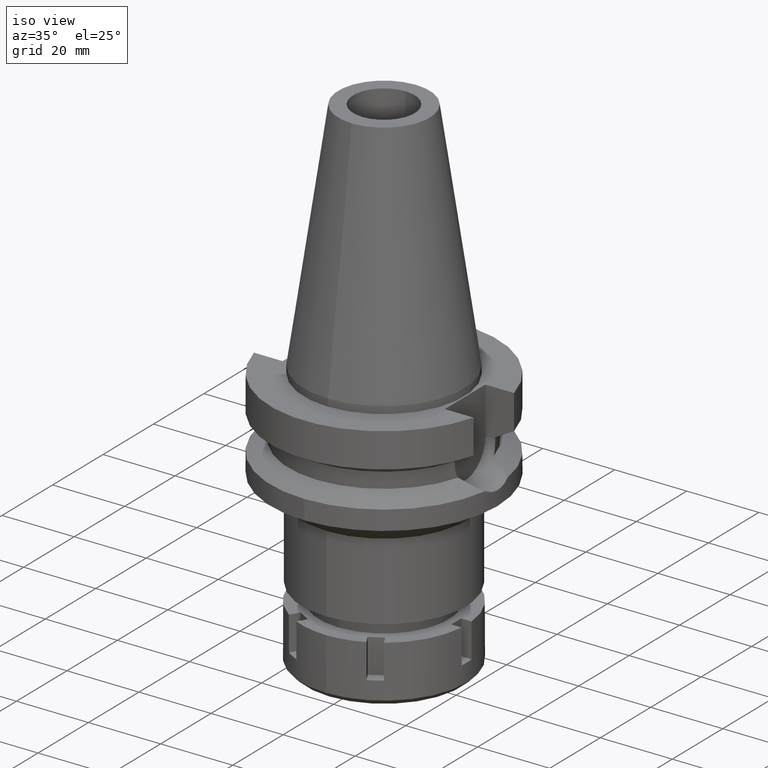
[diagram: clean part render]
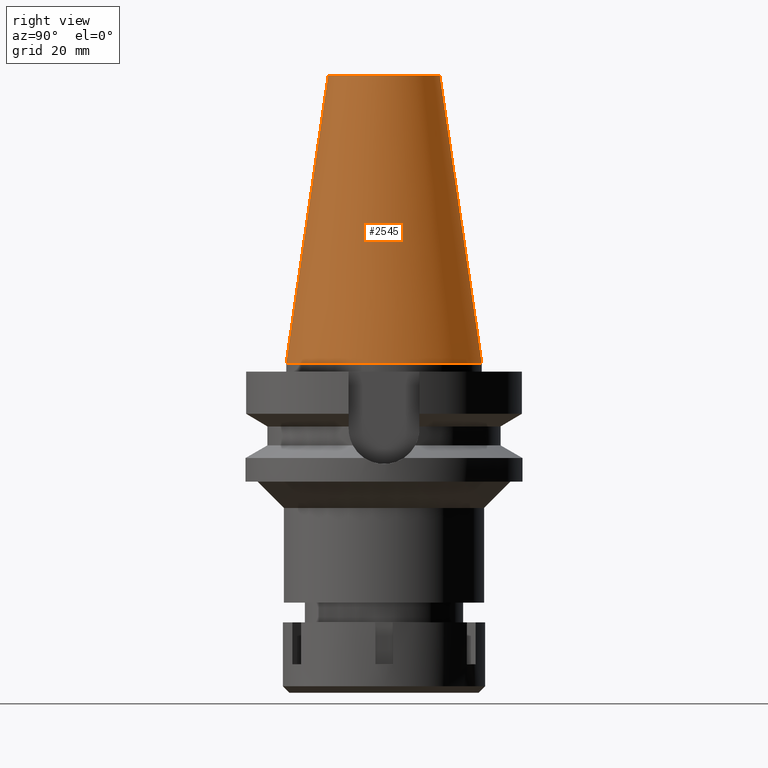
[diagram: tour spotlight — one face highlighted and labeled with its STEP entity id]
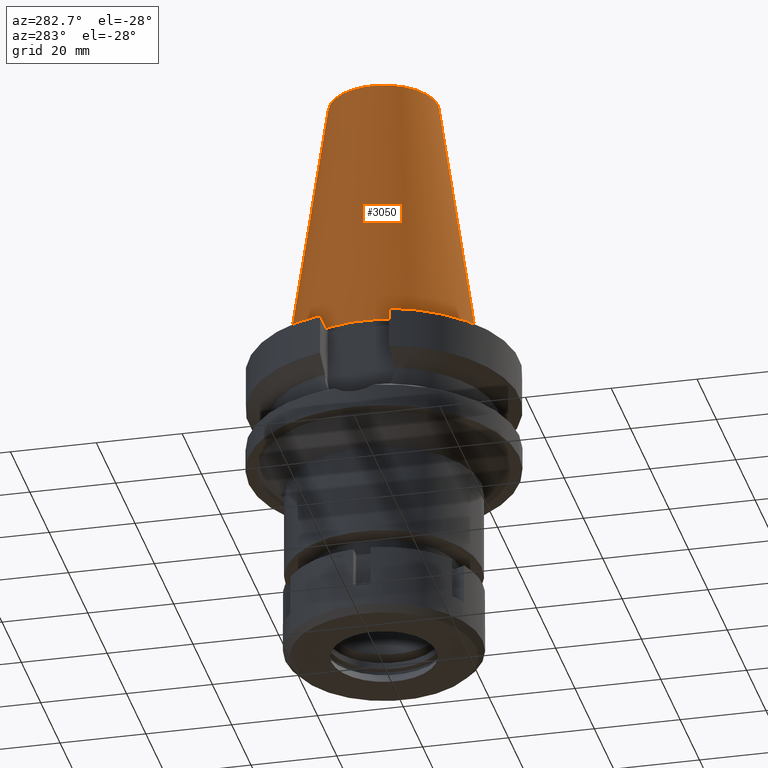
[diagram: tour spotlight — one face highlighted and labeled with its STEP entity id]
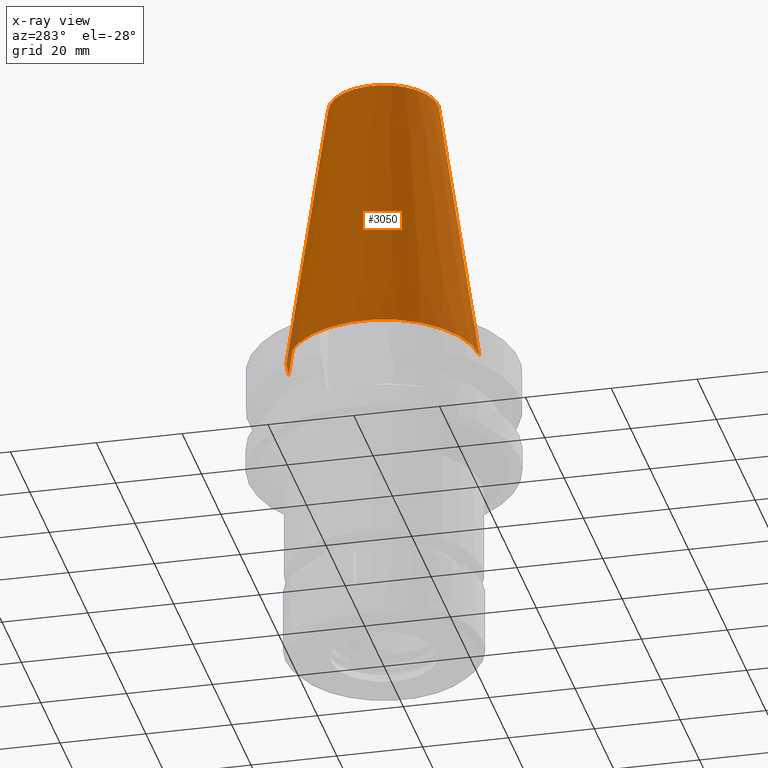
[diagram: x-ray of the same camera — body ghosted, this tour face saturated]
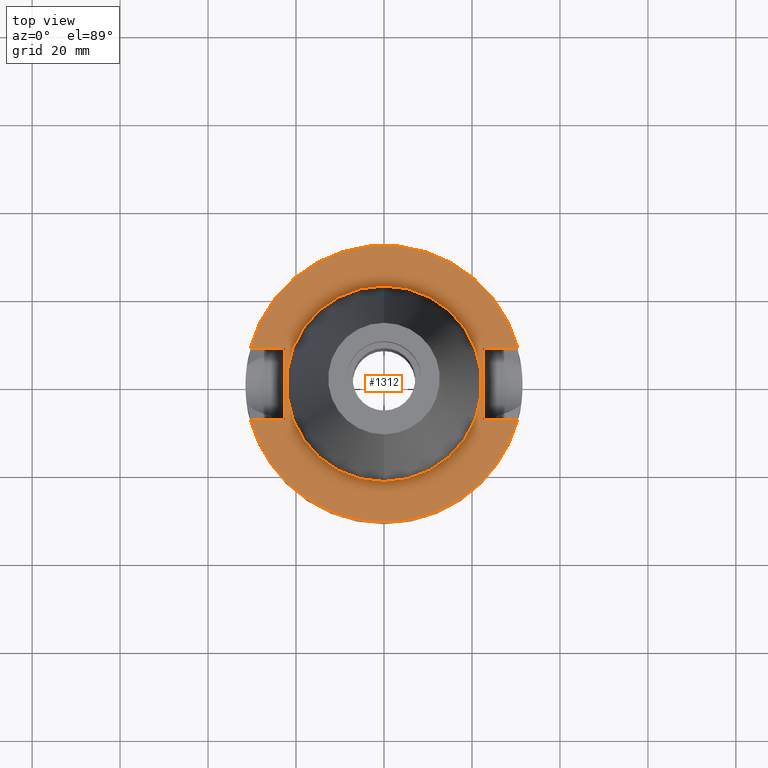
[diagram: tour spotlight — one face highlighted and labeled with its STEP entity id]
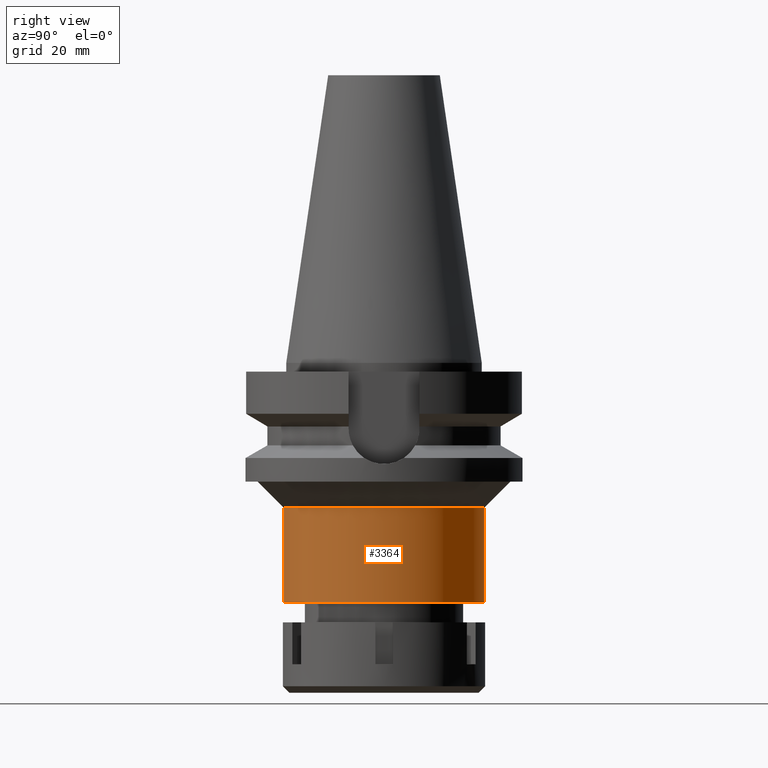
[diagram: tour spotlight — one face highlighted and labeled with its STEP entity id]
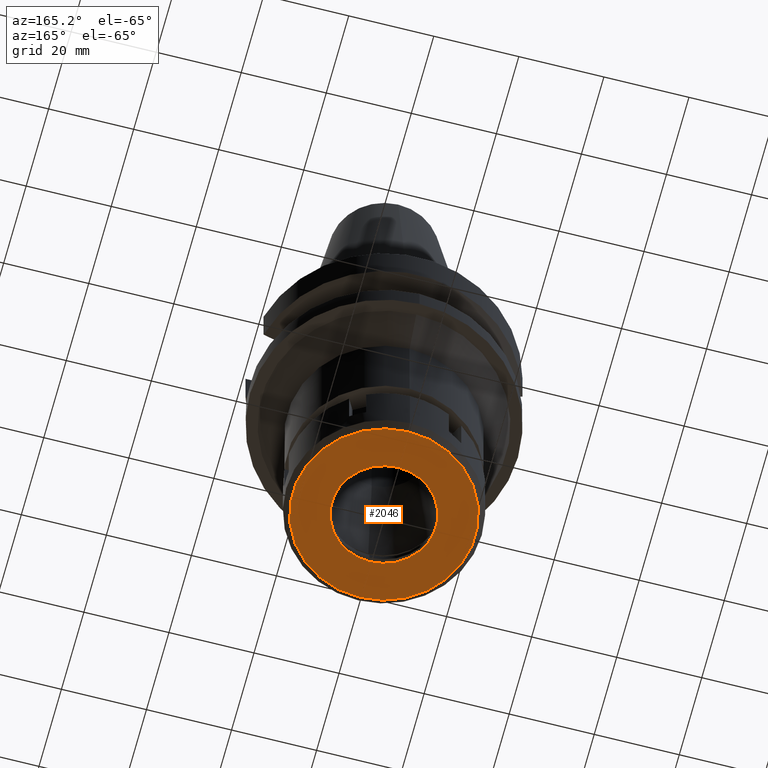
[diagram: tour spotlight — one face highlighted and labeled with its STEP entity id]
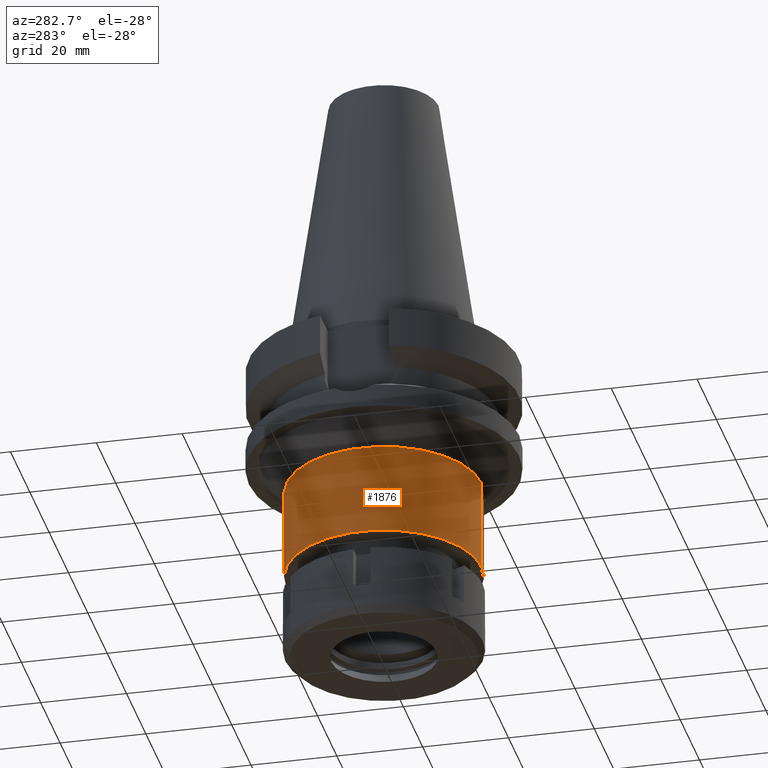
[diagram: tour spotlight — one face highlighted and labeled with its STEP entity id]
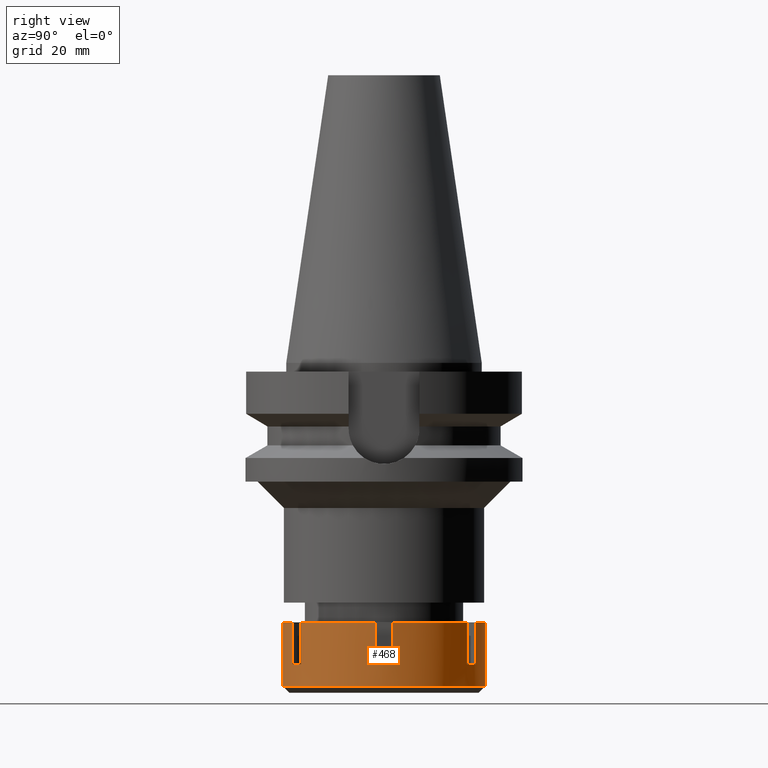
[diagram: tour spotlight — one face highlighted and labeled with its STEP entity id]
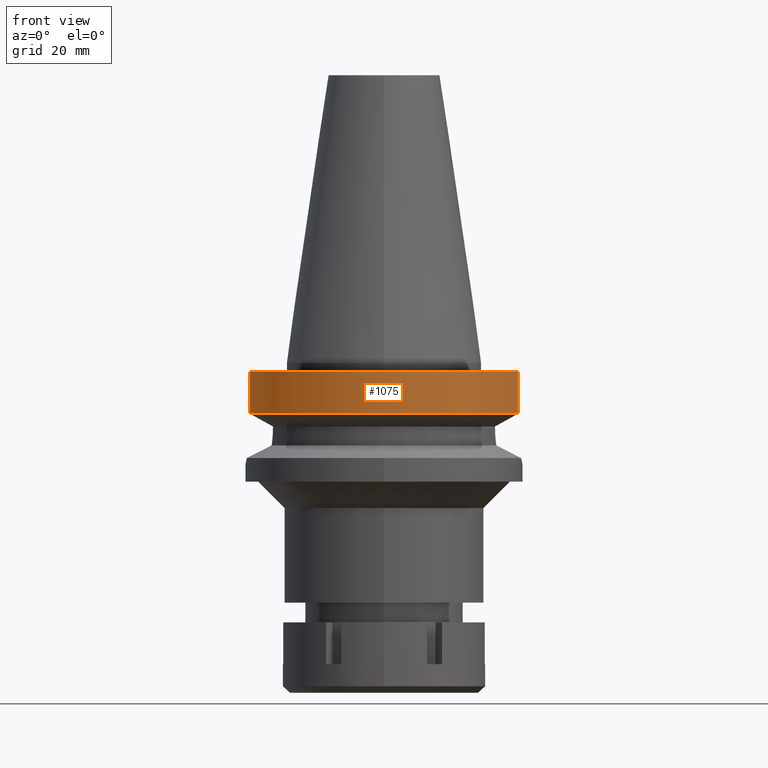
[diagram: tour spotlight — one face highlighted and labeled with its STEP entity id]
A machine part: a face-by-face anatomy tour. The part has 90 B-rep faces; the first image is the clean iso view, then the 8 largest visible faces are spotlighted one at a time (largest first), each with its STEP entity span.

Face 1 — right view, entity #2545. In plain terms, the highlighted conical surface has half-angle 8.297 deg.
Definition (entity closure, byte-faithful):
#220 = AXIS2_PLACEMENT_3D ( 'NONE', #850, #3033, #817 ) ;
#231 = CARTESIAN_POINT ( 'NONE',  ( 0.0000000000000000000, -12.68766899429999917, 65.40000000000000568 ) ) ;
#250 = ORIENTED_EDGE ( 'NONE', *, *, #2517, .F. ) ;
#337 = CARTESIAN_POINT ( 'NONE',  ( 0.0000000000000000000, 12.68766899429999917, 65.40000000000000568 ) ) ;
#340 = CIRCLE ( 'NONE', #220, 22.22500000000000142 ) ;
#346 = ORIENTED_EDGE ( 'NONE', *, *, #1096, .F. ) ;
#401 = CONICAL_SURFACE ( 'NONE', #3384, 17.45633449714999941, 0.1448099680379422438 ) ;
#595 = EDGE_CURVE ( 'NONE', #801, #2490, #2067, .T. ) ;
#795 = CARTESIAN_POINT ( 'NONE',  ( 0.0000000000000000000, 1.625106302469000024E-14, 65.40000000000000568 ) ) ;
#801 = VERTEX_POINT ( 'NONE', #2537 ) ;
#817 = DIRECTION ( 'NONE',  ( 0.0000000000000000000, 1.000000000000000000, 0.0000000000000000000 ) ) ;
#821 = DIRECTION ( 'NONE',  ( 0.0000000000000000000, -0.1443043893539925626, -0.9895333461855498891 ) ) ;
#850 = CARTESIAN_POINT ( 'NONE',  ( 0.0000000000000000000, 1.625106302469000024E-14, 2.842170943039999687E-14 ) ) ;
#867 = CARTESIAN_POINT ( 'NONE',  ( 0.0000000000000000000, 22.22500000000000142, 7.105427357600999334E-14 ) ) ;
#1096 = EDGE_CURVE ( 'NONE', #801, #2719, #2988, .T. ) ;
#1100 = ORIENTED_EDGE ( 'NONE', *, *, #1903, .T. ) ;
#1357 = CARTESIAN_POINT ( 'NONE',  ( 0.0000000000000000000, 1.625106302469000024E-14, 32.70000000000000284 ) ) ;
#1366 = VECTOR ( 'NONE', #2788, 1000.000000000000114 ) ;
#1388 = DIRECTION ( 'NONE',  ( 0.0000000000000000000, 1.000000000000000000, 0.0000000000000000000 ) ) ;
#1433 = VERTEX_POINT ( 'NONE', #2119 ) ;
#1582 = ORIENTED_EDGE ( 'NONE', *, *, #595, .T. ) ;
#1659 = FACE_OUTER_BOUND ( 'NONE', #2609, .T. ) ;
#1903 = EDGE_CURVE ( 'NONE', #2490, #1433, #2207, .T. ) ;
#1914 = CARTESIAN_POINT ( 'NONE',  ( 0.0000000000000000000, -12.68766899429999917, 65.40000000000000568 ) ) ;
#1924 = DIRECTION ( 'NONE',  ( 0.0000000000000000000, -1.000000000000000000, 0.0000000000000000000 ) ) ;
#2067 = CIRCLE ( 'NONE', #3452, 12.68766899429999917 ) ;
#2119 = CARTESIAN_POINT ( 'NONE',  ( 0.0000000000000000000, -22.22500000000000142, 7.105427357600999334E-14 ) ) ;
#2207 = LINE ( 'NONE', #1914, #3378 ) ;
#2400 = DIRECTION ( 'NONE',  ( 0.0000000000000000000, 0.0000000000000000000, -1.000000000000000000 ) ) ;
#2490 = VERTEX_POINT ( 'NONE', #231 ) ;
#2517 = EDGE_CURVE ( 'NONE', #2719, #1433, #340, .T. ) ;
#2537 = CARTESIAN_POINT ( 'NONE',  ( 0.0000000000000000000, 12.68766899429999917, 65.40000000000000568 ) ) ;
#2545 = ADVANCED_FACE ( 'NONE', ( #1659 ), #401, .T. ) ;
#2609 = EDGE_LOOP ( 'NONE', ( #1582, #1100, #250, #346 ) ) ;
#2719 = VERTEX_POINT ( 'NONE', #867 ) ;
#2788 = DIRECTION ( 'NONE',  ( 0.0000000000000000000, 0.1443043893539925626, -0.9895333461855498891 ) ) ;
#2973 = DIRECTION ( 'NONE',  ( 0.0000000000000000000, 0.0000000000000000000, -1.000000000000000000 ) ) ;
#2988 = LINE ( 'NONE', #337, #1366 ) ;
#3033 = DIRECTION ( 'NONE',  ( 0.0000000000000000000, 0.0000000000000000000, -1.000000000000000000 ) ) ;
#3378 = VECTOR ( 'NONE', #821, 1000.000000000000114 ) ;
#3384 = AXIS2_PLACEMENT_3D ( 'NONE', #1357, #2400, #1924 ) ;
#3452 = AXIS2_PLACEMENT_3D ( 'NONE', #795, #2973, #1388 ) ;

Face 2 — auxiliary view, entity #3050. An x-ray twin of the same camera follows (body ghosted, this face saturated) — the face is partly hidden behind the body. In plain terms, the highlighted conical surface has half-angle 8.297 deg.
Definition (entity closure, byte-faithful):
#201 = DIRECTION ( 'NONE',  ( 0.0000000000000000000, 0.0000000000000000000, -1.000000000000000000 ) ) ;
#231 = CARTESIAN_POINT ( 'NONE',  ( 0.0000000000000000000, -12.68766899429999917, 65.40000000000000568 ) ) ;
#279 = CONICAL_SURFACE ( 'NONE', #1776, 17.45633449714999941, 0.1448099680379422438 ) ;
#337 = CARTESIAN_POINT ( 'NONE',  ( 0.0000000000000000000, 12.68766899429999917, 65.40000000000000568 ) ) ;
#426 = DIRECTION ( 'NONE',  ( 0.0000000000000000000, -1.000000000000000000, 0.0000000000000000000 ) ) ;
#487 = CARTESIAN_POINT ( 'NONE',  ( 0.0000000000000000000, 1.625106302469000024E-14, 32.70000000000000284 ) ) ;
#514 = AXIS2_PLACEMENT_3D ( 'NONE', #2650, #1573, #729 ) ;
#648 = ORIENTED_EDGE ( 'NONE', *, *, #2318, .T. ) ;
#729 = DIRECTION ( 'NONE',  ( 0.0000000000000000000, -1.000000000000000000, 0.0000000000000000000 ) ) ;
#801 = VERTEX_POINT ( 'NONE', #2537 ) ;
#821 = DIRECTION ( 'NONE',  ( 0.0000000000000000000, -0.1443043893539925626, -0.9895333461855498891 ) ) ;
#867 = CARTESIAN_POINT ( 'NONE',  ( 0.0000000000000000000, 22.22500000000000142, 7.105427357600999334E-14 ) ) ;
#911 = CIRCLE ( 'NONE', #514, 12.68766899429999917 ) ;
#1096 = EDGE_CURVE ( 'NONE', #801, #2719, #2988, .T. ) ;
#1366 = VECTOR ( 'NONE', #2788, 1000.000000000000114 ) ;
#1433 = VERTEX_POINT ( 'NONE', #2119 ) ;
#1573 = DIRECTION ( 'NONE',  ( 0.0000000000000000000, 0.0000000000000000000, -1.000000000000000000 ) ) ;
#1776 = AXIS2_PLACEMENT_3D ( 'NONE', #487, #1867, #2662 ) ;
#1857 = EDGE_CURVE ( 'NONE', #1433, #2719, #2053, .T. ) ;
#1867 = DIRECTION ( 'NONE',  ( 0.0000000000000000000, 0.0000000000000000000, -1.000000000000000000 ) ) ;
#1903 = EDGE_CURVE ( 'NONE', #2490, #1433, #2207, .T. ) ;
#1914 = CARTESIAN_POINT ( 'NONE',  ( 0.0000000000000000000, -12.68766899429999917, 65.40000000000000568 ) ) ;
#1922 = ORIENTED_EDGE ( 'NONE', *, *, #1096, .T. ) ;
#2053 = CIRCLE ( 'NONE', #2390, 22.22500000000000142 ) ;
#2119 = CARTESIAN_POINT ( 'NONE',  ( 0.0000000000000000000, -22.22500000000000142, 7.105427357600999334E-14 ) ) ;
#2134 = ORIENTED_EDGE ( 'NONE', *, *, #1857, .F. ) ;
#2207 = LINE ( 'NONE', #1914, #3378 ) ;
#2318 = EDGE_CURVE ( 'NONE', #2490, #801, #911, .T. ) ;
#2390 = AXIS2_PLACEMENT_3D ( 'NONE', #2909, #201, #426 ) ;
#2413 = ORIENTED_EDGE ( 'NONE', *, *, #1903, .F. ) ;
#2490 = VERTEX_POINT ( 'NONE', #231 ) ;
#2537 = CARTESIAN_POINT ( 'NONE',  ( 0.0000000000000000000, 12.68766899429999917, 65.40000000000000568 ) ) ;
#2650 = CARTESIAN_POINT ( 'NONE',  ( 0.0000000000000000000, 1.625106302469000024E-14, 65.40000000000000568 ) ) ;
#2662 = DIRECTION ( 'NONE',  ( 0.0000000000000000000, -1.000000000000000000, 0.0000000000000000000 ) ) ;
#2719 = VERTEX_POINT ( 'NONE', #867 ) ;
#2788 = DIRECTION ( 'NONE',  ( 0.0000000000000000000, 0.1443043893539925626, -0.9895333461855498891 ) ) ;
#2909 = CARTESIAN_POINT ( 'NONE',  ( 0.0000000000000000000, 1.625106302469000024E-14, 2.842170943039999687E-14 ) ) ;
#2953 = FACE_OUTER_BOUND ( 'NONE', #3304, .T. ) ;
#2988 = LINE ( 'NONE', #337, #1366 ) ;
#3050 = ADVANCED_FACE ( 'NONE', ( #2953 ), #279, .T. ) ;
#3304 = EDGE_LOOP ( 'NONE', ( #2134, #2413, #648, #1922 ) ) ;
#3378 = VECTOR ( 'NONE', #821, 1000.000000000000114 ) ;

Face 3 — top view, entity #1312. In plain terms, the highlighted planar face has unit normal (0, 0, -1).
Definition (entity closure, byte-faithful):
#22 = CARTESIAN_POINT ( 'NONE',  ( 0.0000000000000000000, 2.106637423893000012E-14, -2.000000000000000000 ) ) ;
#67 = CARTESIAN_POINT ( 'NONE',  ( -30.45402272279000044, 8.050000000000000711, -2.000000000000000000 ) ) ;
#71 = ORIENTED_EDGE ( 'NONE', *, *, #1777, .F. ) ;
#129 = DIRECTION ( 'NONE',  ( -1.000000000000000000, 3.550916904668000126E-14, 0.0000000000000000000 ) ) ;
#143 = PLANE ( 'NONE',  #1484 ) ;
#169 = CIRCLE ( 'NONE', #2922, 22.22500000000000142 ) ;
#180 = VERTEX_POINT ( 'NONE', #1710 ) ;
#205 = EDGE_CURVE ( 'NONE', #2505, #3370, #1963, .T. ) ;
#282 = DIRECTION ( 'NONE',  ( 0.0000000000000000000, 0.0000000000000000000, -1.000000000000000000 ) ) ;
#392 = FACE_BOUND ( 'NONE', #398, .T. ) ;
#398 = EDGE_LOOP ( 'NONE', ( #71, #2460 ) ) ;
#409 = CARTESIAN_POINT ( 'NONE',  ( -22.50000000000000000, -8.050000000000000711, -2.000000000000000000 ) ) ;
#419 = VERTEX_POINT ( 'NONE', #966 ) ;
#444 = CIRCLE ( 'NONE', #3146, 22.22500000000000142 ) ;
#493 = ORIENTED_EDGE ( 'NONE', *, *, #2322, .T. ) ;
#508 = ORIENTED_EDGE ( 'NONE', *, *, #1685, .F. ) ;
#525 = EDGE_CURVE ( 'NONE', #2699, #681, #1278, .T. ) ;
#590 = AXIS2_PLACEMENT_3D ( 'NONE', #2644, #1283, #2362 ) ;
#662 = EDGE_CURVE ( 'NONE', #180, #1078, #169, .T. ) ;
#670 = LINE ( 'NONE', #2303, #2843 ) ;
#681 = VERTEX_POINT ( 'NONE', #3363 ) ;
#698 = CARTESIAN_POINT ( 'NONE',  ( 22.50000000000000000, 8.050000000000000711, -2.000000000000000000 ) ) ;
#828 = ORIENTED_EDGE ( 'NONE', *, *, #1362, .F. ) ;
#857 = CARTESIAN_POINT ( 'NONE',  ( -22.50000000000000000, 8.050000000000000711, -2.000000000000000000 ) ) ;
#872 = VERTEX_POINT ( 'NONE', #2079 ) ;
#947 = FACE_OUTER_BOUND ( 'NONE', #2313, .T. ) ;
#961 = VECTOR ( 'NONE', #129, 1000.000000000000000 ) ;
#962 = CARTESIAN_POINT ( 'NONE',  ( 0.0000000000000000000, 1.200153863163999924E-14, -2.000000000000000000 ) ) ;
#963 = DIRECTION ( 'NONE',  ( 1.000000000000000000, 3.573249715389999860E-14, 0.0000000000000000000 ) ) ;
#966 = CARTESIAN_POINT ( 'NONE',  ( 22.50000000000000000, -8.050000000000000711, -2.000000000000000000 ) ) ;
#1078 = VERTEX_POINT ( 'NONE', #2210 ) ;
#1106 = VERTEX_POINT ( 'NONE', #1915 ) ;
#1115 = EDGE_CURVE ( 'NONE', #3370, #2699, #1439, .T. ) ;
#1154 = AXIS2_PLACEMENT_3D ( 'NONE', #3007, #282, #3507 ) ;
#1205 = DIRECTION ( 'NONE',  ( 0.0000000000000000000, 0.0000000000000000000, -1.000000000000000000 ) ) ;
#1270 = LINE ( 'NONE', #698, #2794 ) ;
#1278 = CIRCLE ( 'NONE', #590, 31.50000000000000000 ) ;
#1283 = DIRECTION ( 'NONE',  ( 0.0000000000000000000, 0.0000000000000000000, -1.000000000000000000 ) ) ;
#1312 = ADVANCED_FACE ( 'NONE', ( #947, #392 ), #143, .F. ) ;
#1316 = EDGE_CURVE ( 'NONE', #2505, #872, #3375, .T. ) ;
#1322 = ORIENTED_EDGE ( 'NONE', *, *, #3015, .F. ) ;
#1362 = EDGE_CURVE ( 'NONE', #1106, #419, #670, .T. ) ;
#1439 = LINE ( 'NONE', #857, #2152 ) ;
#1474 = LINE ( 'NONE', #2006, #3090 ) ;
#1484 = AXIS2_PLACEMENT_3D ( 'NONE', #962, #1205, #1520 ) ;
#1520 = DIRECTION ( 'NONE',  ( 0.0000000000000000000, -1.000000000000000000, 0.0000000000000000000 ) ) ;
#1641 = ORIENTED_EDGE ( 'NONE', *, *, #1316, .T. ) ;
#1685 = EDGE_CURVE ( 'NONE', #419, #2955, #1474, .T. ) ;
#1710 = CARTESIAN_POINT ( 'NONE',  ( 0.0000000000000000000, -22.22500000000000142, -2.000000000000000000 ) ) ;
#1777 = EDGE_CURVE ( 'NONE', #1078, #180, #444, .T. ) ;
#1823 = CARTESIAN_POINT ( 'NONE',  ( 0.0000000000000000000, 2.106637423893000012E-14, -2.000000000000000000 ) ) ;
#1915 = CARTESIAN_POINT ( 'NONE',  ( 22.50000000000000000, 8.050000000000000711, -2.000000000000000000 ) ) ;
#1963 = LINE ( 'NONE', #3311, #3106 ) ;
#2006 = CARTESIAN_POINT ( 'NONE',  ( 22.50000000000000000, -8.050000000000000711, -2.000000000000000000 ) ) ;
#2034 = ORIENTED_EDGE ( 'NONE', *, *, #205, .F. ) ;
#2079 = CARTESIAN_POINT ( 'NONE',  ( -30.45402272279000044, -8.050000000000000711, -2.000000000000000000 ) ) ;
#2152 = VECTOR ( 'NONE', #3287, 1000.000000000000000 ) ;
#2153 = ORIENTED_EDGE ( 'NONE', *, *, #1115, .F. ) ;
#2210 = CARTESIAN_POINT ( 'NONE',  ( 0.0000000000000000000, 22.22500000000000142, -2.000000000000000000 ) ) ;
#2303 = CARTESIAN_POINT ( 'NONE',  ( 22.50000000000000000, 8.050000000000000711, -2.000000000000000000 ) ) ;
#2313 = EDGE_LOOP ( 'NONE', ( #1641, #1322, #508, #828, #493, #3169, #2153, #2034 ) ) ;
#2322 = EDGE_CURVE ( 'NONE', #1106, #681, #1270, .T. ) ;
#2337 = DIRECTION ( 'NONE',  ( 0.0000000000000000000, 0.0000000000000000000, 1.000000000000000000 ) ) ;
#2362 = DIRECTION ( 'NONE',  ( 0.0000000000000000000, 1.000000000000000000, 0.0000000000000000000 ) ) ;
#2389 = CARTESIAN_POINT ( 'NONE',  ( -22.50000000000000000, 8.050000000000000711, -2.000000000000000000 ) ) ;
#2420 = CARTESIAN_POINT ( 'NONE',  ( -22.50000000000000000, -8.050000000000000711, -2.000000000000000000 ) ) ;
#2460 = ORIENTED_EDGE ( 'NONE', *, *, #662, .F. ) ;
#2505 = VERTEX_POINT ( 'NONE', #2420 ) ;
#2519 = DIRECTION ( 'NONE',  ( 0.0000000000000000000, 0.0000000000000000000, 1.000000000000000000 ) ) ;
#2644 = CARTESIAN_POINT ( 'NONE',  ( 0.0000000000000000000, 2.106637423893000012E-14, -2.000000000000000000 ) ) ;
#2699 = VERTEX_POINT ( 'NONE', #67 ) ;
#2740 = DIRECTION ( 'NONE',  ( 0.0000000000000000000, 1.000000000000000000, 0.0000000000000000000 ) ) ;
#2790 = DIRECTION ( 'NONE',  ( 0.0000000000000000000, -1.000000000000000000, 0.0000000000000000000 ) ) ;
#2794 = VECTOR ( 'NONE', #3462, 1000.000000000000000 ) ;
#2843 = VECTOR ( 'NONE', #3423, 1000.000000000000000 ) ;
#2922 = AXIS2_PLACEMENT_3D ( 'NONE', #22, #2519, #2790 ) ;
#2955 = VERTEX_POINT ( 'NONE', #3537 ) ;
#3007 = CARTESIAN_POINT ( 'NONE',  ( 0.0000000000000000000, 2.106637423893000012E-14, -2.000000000000000000 ) ) ;
#3015 = EDGE_CURVE ( 'NONE', #2955, #872, #3446, .T. ) ;
#3090 = VECTOR ( 'NONE', #963, 1000.000000000000000 ) ;
#3106 = VECTOR ( 'NONE', #2740, 1000.000000000000000 ) ;
#3146 = AXIS2_PLACEMENT_3D ( 'NONE', #1823, #2337, #3175 ) ;
#3169 = ORIENTED_EDGE ( 'NONE', *, *, #525, .F. ) ;
#3175 = DIRECTION ( 'NONE',  ( 0.0000000000000000000, 1.000000000000000000, 0.0000000000000000000 ) ) ;
#3287 = DIRECTION ( 'NONE',  ( -1.000000000000000000, -3.550916904668000126E-14, 0.0000000000000000000 ) ) ;
#3311 = CARTESIAN_POINT ( 'NONE',  ( -22.50000000000000000, -8.050000000000000711, -2.000000000000000000 ) ) ;
#3363 = CARTESIAN_POINT ( 'NONE',  ( 30.45402272279000044, 8.050000000000000711, -2.000000000000000000 ) ) ;
#3370 = VERTEX_POINT ( 'NONE', #2389 ) ;
#3375 = LINE ( 'NONE', #409, #961 ) ;
#3423 = DIRECTION ( 'NONE',  ( 0.0000000000000000000, -1.000000000000000000, 0.0000000000000000000 ) ) ;
#3446 = CIRCLE ( 'NONE', #1154, 31.50000000000000000 ) ;
#3462 = DIRECTION ( 'NONE',  ( 1.000000000000000000, -3.506251283225999947E-14, 0.0000000000000000000 ) ) ;
#3507 = DIRECTION ( 'NONE',  ( 0.0000000000000000000, -1.000000000000000000, 0.0000000000000000000 ) ) ;
#3537 = CARTESIAN_POINT ( 'NONE',  ( 30.45402272279000044, -8.050000000000000711, -2.000000000000000000 ) ) ;

Face 4 — right view, entity #3364. In plain terms, the highlighted cylindrical surface (partial cylindrical patch) has radius 22.75 mm, axis along (0, 0, -1).
Definition (entity closure, byte-faithful):
#80 = CARTESIAN_POINT ( 'NONE',  ( 0.0000000000000000000, 0.0000000000000000000, -33.00000000000000000 ) ) ;
#210 = VERTEX_POINT ( 'NONE', #2202 ) ;
#224 = VERTEX_POINT ( 'NONE', #3009 ) ;
#284 = EDGE_CURVE ( 'NONE', #210, #224, #3054, .T. ) ;
#343 = DIRECTION ( 'NONE',  ( 0.0000000000000000000, 1.000000000000000000, 0.0000000000000000000 ) ) ;
#370 = EDGE_CURVE ( 'NONE', #917, #1197, #2080, .T. ) ;
#496 = CARTESIAN_POINT ( 'NONE',  ( 0.0000000000000000000, 2.106637423893000012E-14, 72.01999999999999602 ) ) ;
#564 = ORIENTED_EDGE ( 'NONE', *, *, #370, .F. ) ;
#605 = CARTESIAN_POINT ( 'NONE',  ( 0.0000000000000000000, -22.75000000000000000, -33.00000000000000000 ) ) ;
#626 = ORIENTED_EDGE ( 'NONE', *, *, #284, .T. ) ;
#641 = CIRCLE ( 'NONE', #1895, 22.75000000000000000 ) ;
#719 = DIRECTION ( 'NONE',  ( 0.0000000000000000000, -1.000000000000000000, 0.0000000000000000000 ) ) ;
#733 = DIRECTION ( 'NONE',  ( 0.0000000000000000000, 0.0000000000000000000, 1.000000000000000000 ) ) ;
#917 = VERTEX_POINT ( 'NONE', #3126 ) ;
#982 = CYLINDRICAL_SURFACE ( 'NONE', #1905, 22.75000000000000000 ) ;
#1037 = DIRECTION ( 'NONE',  ( 0.0000000000000000000, 0.0000000000000000000, -1.000000000000000000 ) ) ;
#1197 = VERTEX_POINT ( 'NONE', #2178 ) ;
#1339 = EDGE_LOOP ( 'NONE', ( #2967, #626, #2931, #564 ) ) ;
#1372 = AXIS2_PLACEMENT_3D ( 'NONE', #2670, #733, #719 ) ;
#1694 = DIRECTION ( 'NONE',  ( 0.0000000000000000000, 0.0000000000000000000, -1.000000000000000000 ) ) ;
#1780 = EDGE_CURVE ( 'NONE', #224, #1197, #2330, .T. ) ;
#1862 = DIRECTION ( 'NONE',  ( 0.0000000000000000000, -1.000000000000000000, 0.0000000000000000000 ) ) ;
#1895 = AXIS2_PLACEMENT_3D ( 'NONE', #80, #3091, #343 ) ;
#1905 = AXIS2_PLACEMENT_3D ( 'NONE', #496, #1037, #1862 ) ;
#2062 = CARTESIAN_POINT ( 'NONE',  ( 0.0000000000000000000, 22.75000000000000000, -33.00000000000000000 ) ) ;
#2080 = LINE ( 'NONE', #2062, #2860 ) ;
#2178 = CARTESIAN_POINT ( 'NONE',  ( 0.0000000000000000000, 22.75000000000000000, -54.50000000000000000 ) ) ;
#2202 = CARTESIAN_POINT ( 'NONE',  ( 0.0000000000000000000, -22.75000000000000000, -33.00000000000000000 ) ) ;
#2290 = DIRECTION ( 'NONE',  ( 0.0000000000000000000, 0.0000000000000000000, -1.000000000000000000 ) ) ;
#2330 = CIRCLE ( 'NONE', #1372, 22.75000000000000000 ) ;
#2670 = CARTESIAN_POINT ( 'NONE',  ( 0.0000000000000000000, 2.106637423893000012E-14, -54.50000000000000000 ) ) ;
#2860 = VECTOR ( 'NONE', #2290, 1000.000000000000000 ) ;
#2931 = ORIENTED_EDGE ( 'NONE', *, *, #1780, .T. ) ;
#2967 = ORIENTED_EDGE ( 'NONE', *, *, #3200, .T. ) ;
#3009 = CARTESIAN_POINT ( 'NONE',  ( 0.0000000000000000000, -22.75000000000000000, -54.50000000000000000 ) ) ;
#3039 = VECTOR ( 'NONE', #1694, 1000.000000000000000 ) ;
#3054 = LINE ( 'NONE', #605, #3039 ) ;
#3091 = DIRECTION ( 'NONE',  ( 0.0000000000000000000, 0.0000000000000000000, -1.000000000000000000 ) ) ;
#3126 = CARTESIAN_POINT ( 'NONE',  ( 0.0000000000000000000, 22.75000000000000000, -33.00000000000000000 ) ) ;
#3200 = EDGE_CURVE ( 'NONE', #917, #210, #641, .T. ) ;
#3364 = ADVANCED_FACE ( 'NONE', ( #3468 ), #982, .T. ) ;
#3468 = FACE_OUTER_BOUND ( 'NONE', #1339, .T. ) ;

Face 5 — auxiliary view, entity #2046. In plain terms, the highlighted planar face has unit normal (0, 0, -1).
Definition (entity closure, byte-faithful):
#17 = CARTESIAN_POINT ( 'NONE',  ( 0.0000000000000000000, -12.25000000000000000, -16.00000000000000000 ) ) ;
#57 = EDGE_LOOP ( 'NONE', ( #3154, #292 ) ) ;
#83 = CARTESIAN_POINT ( 'NONE',  ( 0.0000000000000000000, 12.25000000000000000, -16.00000000000000000 ) ) ;
#125 = DIRECTION ( 'NONE',  ( 0.0000000000000000000, 0.0000000000000000000, 1.000000000000000000 ) ) ;
#186 = VERTEX_POINT ( 'NONE', #83 ) ;
#281 = CARTESIAN_POINT ( 'NONE',  ( 0.0000000000000000000, 0.0000000000000000000, -16.00000000000000000 ) ) ;
#292 = ORIENTED_EDGE ( 'NONE', *, *, #2243, .F. ) ;
#533 = CARTESIAN_POINT ( 'NONE',  ( 0.0000000000000000000, 0.0000000000000000000, -16.00000000000000000 ) ) ;
#577 = ORIENTED_EDGE ( 'NONE', *, *, #3403, .F. ) ;
#593 = PLANE ( 'NONE',  #2613 ) ;
#632 = CIRCLE ( 'NONE', #3438, 12.25000000000000000 ) ;
#683 = CARTESIAN_POINT ( 'NONE',  ( 0.0000000000000000000, 0.0000000000000000000, -16.00000000000000000 ) ) ;
#750 = EDGE_CURVE ( 'NONE', #2815, #1678, #2122, .T. ) ;
#756 = CARTESIAN_POINT ( 'NONE',  ( 0.0000000000000000000, 0.0000000000000000000, -16.00000000000000000 ) ) ;
#764 = CARTESIAN_POINT ( 'NONE',  ( 0.0000000000000000000, 21.50000000000000000, -16.00000000000000000 ) ) ;
#808 = DIRECTION ( 'NONE',  ( 0.0000000000000000000, -1.000000000000000000, 0.0000000000000000000 ) ) ;
#838 = FACE_BOUND ( 'NONE', #2110, .T. ) ;
#1045 = AXIS2_PLACEMENT_3D ( 'NONE', #281, #3047, #1442 ) ;
#1258 = VERTEX_POINT ( 'NONE', #17 ) ;
#1442 = DIRECTION ( 'NONE',  ( 0.0000000000000000000, 1.000000000000000000, 0.0000000000000000000 ) ) ;
#1678 = VERTEX_POINT ( 'NONE', #3376 ) ;
#1681 = DIRECTION ( 'NONE',  ( 0.0000000000000000000, 0.0000000000000000000, -1.000000000000000000 ) ) ;
#1717 = DIRECTION ( 'NONE',  ( 0.0000000000000000000, -1.000000000000000000, 0.0000000000000000000 ) ) ;
#1870 = DIRECTION ( 'NONE',  ( 0.0000000000000000000, 1.000000000000000000, 0.0000000000000000000 ) ) ;
#1877 = CARTESIAN_POINT ( 'NONE',  ( 0.0000000000000000000, 0.0000000000000000000, -16.00000000000000000 ) ) ;
#1945 = CIRCLE ( 'NONE', #3381, 21.50000000000000000 ) ;
#2046 = ADVANCED_FACE ( 'NONE', ( #2194, #838 ), #593, .T. ) ;
#2110 = EDGE_LOOP ( 'NONE', ( #3286, #577 ) ) ;
#2122 = CIRCLE ( 'NONE', #1045, 21.50000000000000000 ) ;
#2194 = FACE_OUTER_BOUND ( 'NONE', #57, .T. ) ;
#2243 = EDGE_CURVE ( 'NONE', #1678, #2815, #1945, .T. ) ;
#2357 = DIRECTION ( 'NONE',  ( 0.0000000000000000000, -1.000000000000000000, 0.0000000000000000000 ) ) ;
#2438 = DIRECTION ( 'NONE',  ( 0.0000000000000000000, 0.0000000000000000000, -1.000000000000000000 ) ) ;
#2475 = EDGE_CURVE ( 'NONE', #186, #1258, #632, .T. ) ;
#2613 = AXIS2_PLACEMENT_3D ( 'NONE', #1877, #2438, #808 ) ;
#2693 = AXIS2_PLACEMENT_3D ( 'NONE', #756, #2929, #2357 ) ;
#2815 = VERTEX_POINT ( 'NONE', #764 ) ;
#2929 = DIRECTION ( 'NONE',  ( 0.0000000000000000000, 0.0000000000000000000, -1.000000000000000000 ) ) ;
#3045 = CIRCLE ( 'NONE', #2693, 12.25000000000000000 ) ;
#3047 = DIRECTION ( 'NONE',  ( 0.0000000000000000000, 0.0000000000000000000, 1.000000000000000000 ) ) ;
#3154 = ORIENTED_EDGE ( 'NONE', *, *, #750, .F. ) ;
#3286 = ORIENTED_EDGE ( 'NONE', *, *, #2475, .F. ) ;
#3376 = CARTESIAN_POINT ( 'NONE',  ( 0.0000000000000000000, -21.50000000000000000, -16.00000000000000000 ) ) ;
#3381 = AXIS2_PLACEMENT_3D ( 'NONE', #683, #125, #1717 ) ;
#3403 = EDGE_CURVE ( 'NONE', #1258, #186, #3045, .T. ) ;
#3438 = AXIS2_PLACEMENT_3D ( 'NONE', #533, #1681, #1870 ) ;

Face 6 — auxiliary view, entity #1876. In plain terms, the highlighted cylindrical surface (partial cylindrical patch) has radius 22.75 mm, axis along (0, 0, -1).
Definition (entity closure, byte-faithful):
#30 = AXIS2_PLACEMENT_3D ( 'NONE', #79, #3109, #2571 ) ;
#79 = CARTESIAN_POINT ( 'NONE',  ( 0.0000000000000000000, 0.0000000000000000000, -33.00000000000000000 ) ) ;
#210 = VERTEX_POINT ( 'NONE', #2202 ) ;
#224 = VERTEX_POINT ( 'NONE', #3009 ) ;
#284 = EDGE_CURVE ( 'NONE', #210, #224, #3054, .T. ) ;
#370 = EDGE_CURVE ( 'NONE', #917, #1197, #2080, .T. ) ;
#458 = CYLINDRICAL_SURFACE ( 'NONE', #2446, 22.75000000000000000 ) ;
#605 = CARTESIAN_POINT ( 'NONE',  ( 0.0000000000000000000, -22.75000000000000000, -33.00000000000000000 ) ) ;
#780 = EDGE_CURVE ( 'NONE', #210, #917, #2725, .T. ) ;
#917 = VERTEX_POINT ( 'NONE', #3126 ) ;
#1147 = ORIENTED_EDGE ( 'NONE', *, *, #1424, .T. ) ;
#1197 = VERTEX_POINT ( 'NONE', #2178 ) ;
#1254 = CIRCLE ( 'NONE', #1821, 22.75000000000000000 ) ;
#1291 = DIRECTION ( 'NONE',  ( 0.0000000000000000000, 0.0000000000000000000, 1.000000000000000000 ) ) ;
#1294 = DIRECTION ( 'NONE',  ( 0.0000000000000000000, 0.0000000000000000000, -1.000000000000000000 ) ) ;
#1415 = EDGE_LOOP ( 'NONE', ( #1147, #1636, #3274, #3248 ) ) ;
#1424 = EDGE_CURVE ( 'NONE', #1197, #224, #1254, .T. ) ;
#1636 = ORIENTED_EDGE ( 'NONE', *, *, #284, .F. ) ;
#1694 = DIRECTION ( 'NONE',  ( 0.0000000000000000000, 0.0000000000000000000, -1.000000000000000000 ) ) ;
#1821 = AXIS2_PLACEMENT_3D ( 'NONE', #1822, #1291, #2073 ) ;
#1822 = CARTESIAN_POINT ( 'NONE',  ( 0.0000000000000000000, 2.106637423893000012E-14, -54.50000000000000000 ) ) ;
#1876 = ADVANCED_FACE ( 'NONE', ( #2088 ), #458, .T. ) ;
#2062 = CARTESIAN_POINT ( 'NONE',  ( 0.0000000000000000000, 22.75000000000000000, -33.00000000000000000 ) ) ;
#2073 = DIRECTION ( 'NONE',  ( 0.0000000000000000000, 1.000000000000000000, 0.0000000000000000000 ) ) ;
#2080 = LINE ( 'NONE', #2062, #2860 ) ;
#2088 = FACE_OUTER_BOUND ( 'NONE', #1415, .T. ) ;
#2178 = CARTESIAN_POINT ( 'NONE',  ( 0.0000000000000000000, 22.75000000000000000, -54.50000000000000000 ) ) ;
#2202 = CARTESIAN_POINT ( 'NONE',  ( 0.0000000000000000000, -22.75000000000000000, -33.00000000000000000 ) ) ;
#2290 = DIRECTION ( 'NONE',  ( 0.0000000000000000000, 0.0000000000000000000, -1.000000000000000000 ) ) ;
#2388 = DIRECTION ( 'NONE',  ( 0.0000000000000000000, -1.000000000000000000, 0.0000000000000000000 ) ) ;
#2446 = AXIS2_PLACEMENT_3D ( 'NONE', #2637, #1294, #2388 ) ;
#2571 = DIRECTION ( 'NONE',  ( 0.0000000000000000000, -1.000000000000000000, 0.0000000000000000000 ) ) ;
#2637 = CARTESIAN_POINT ( 'NONE',  ( 0.0000000000000000000, 2.106637423893000012E-14, 72.01999999999999602 ) ) ;
#2725 = CIRCLE ( 'NONE', #30, 22.75000000000000000 ) ;
#2860 = VECTOR ( 'NONE', #2290, 1000.000000000000000 ) ;
#3009 = CARTESIAN_POINT ( 'NONE',  ( 0.0000000000000000000, -22.75000000000000000, -54.50000000000000000 ) ) ;
#3039 = VECTOR ( 'NONE', #1694, 1000.000000000000000 ) ;
#3054 = LINE ( 'NONE', #605, #3039 ) ;
#3109 = DIRECTION ( 'NONE',  ( 0.0000000000000000000, 0.0000000000000000000, -1.000000000000000000 ) ) ;
#3126 = CARTESIAN_POINT ( 'NONE',  ( 0.0000000000000000000, 22.75000000000000000, -33.00000000000000000 ) ) ;
#3248 = ORIENTED_EDGE ( 'NONE', *, *, #370, .T. ) ;
#3274 = ORIENTED_EDGE ( 'NONE', *, *, #780, .T. ) ;

Face 7 — right view, entity #468. In plain terms, the highlighted cylindrical surface (partial cylindrical patch) has radius 23 mm, axis along (0, 0, -1).
Definition (entity closure, byte-faithful):
#15 = CARTESIAN_POINT ( 'NONE',  ( 22.91287847478000117, 2.000000000000000000, 0.0000000000000000000 ) ) ;
#41 = ORIENTED_EDGE ( 'NONE', *, *, #1441, .F. ) ;
#44 = VERTEX_POINT ( 'NONE', #1606 ) ;
#46 = EDGE_CURVE ( 'NONE', #1886, #506, #1162, .T. ) ;
#47 = ORIENTED_EDGE ( 'NONE', *, *, #46, .T. ) ;
#59 = EDGE_CURVE ( 'NONE', #1886, #44, #1373, .T. ) ;
#152 = VERTEX_POINT ( 'NONE', #2220 ) ;
#160 = CIRCLE ( 'NONE', #3442, 23.00000000000000355 ) ;
#200 = DIRECTION ( 'NONE',  ( 0.0000000000000000000, 0.0000000000000000000, -1.000000000000000000 ) ) ;
#213 = CARTESIAN_POINT ( 'NONE',  ( 0.0000000000000000000, 0.0000000000000000000, 0.0000000000000000000 ) ) ;
#273 = CARTESIAN_POINT ( 'NONE',  ( 0.0000000000000000000, 0.0000000000000000000, -9.500000000000000000 ) ) ;
#274 = DIRECTION ( 'NONE',  ( 0.0000000000000000000, 0.0000000000000000000, 1.000000000000000000 ) ) ;
#332 = EDGE_LOOP ( 'NONE', ( #1572, #498, #666, #1968, #2255, #457, #1539, #642, #41, #3405, #1969, #3063, #2792, #47, #2886, #3491 ) ) ;
#357 = VERTEX_POINT ( 'NONE', #1512 ) ;
#394 = VECTOR ( 'NONE', #200, 1000.000000000000000 ) ;
#396 = LINE ( 'NONE', #657, #3139 ) ;
#438 = CARTESIAN_POINT ( 'NONE',  ( 0.0000000000000000000, 0.0000000000000000000, 0.0000000000000000000 ) ) ;
#448 = CIRCLE ( 'NONE', #3094, 23.00000000000001066 ) ;
#457 = ORIENTED_EDGE ( 'NONE', *, *, #1456, .T. ) ;
#466 = CIRCLE ( 'NONE', #1107, 23.00000000000000355 ) ;
#468 = ADVANCED_FACE ( 'NONE', ( #1007 ), #2952, .T. ) ;
#498 = ORIENTED_EDGE ( 'NONE', *, *, #3483, .T. ) ;
#506 = VERTEX_POINT ( 'NONE', #3195 ) ;
#548 = EDGE_CURVE ( 'NONE', #2515, #2620, #466, .T. ) ;
#568 = DIRECTION ( 'NONE',  ( 0.0000000000000000000, 0.0000000000000000000, -1.000000000000000000 ) ) ;
#598 = DIRECTION ( 'NONE',  ( 0.0000000000000000000, 0.0000000000000000000, 1.000000000000000000 ) ) ;
#611 = CARTESIAN_POINT ( 'NONE',  ( 22.91287847478000117, 2.000000000000000000, -9.500000000000000000 ) ) ;
#642 = ORIENTED_EDGE ( 'NONE', *, *, #2189, .T. ) ;
#657 = CARTESIAN_POINT ( 'NONE',  ( 9.724388429822001356, 20.84313483297999881, -9.500000000000000000 ) ) ;
#666 = ORIENTED_EDGE ( 'NONE', *, *, #2156, .F. ) ;
#703 = VECTOR ( 'NONE', #2453, 1000.000000000000000 ) ;
#707 = VECTOR ( 'NONE', #274, 1000.000000000000000 ) ;
#732 = CARTESIAN_POINT ( 'NONE',  ( 9.724388429820001178, -20.84313483297999881, 0.0000000000000000000 ) ) ;
#768 = DIRECTION ( 'NONE',  ( 0.0000000000000000000, 1.000000000000000000, 0.0000000000000000000 ) ) ;
#773 = CARTESIAN_POINT ( 'NONE',  ( 0.0000000000000000000, -23.00000000000000000, 0.0000000000000000000 ) ) ;
#823 = LINE ( 'NONE', #2195, #707 ) ;
#825 = CARTESIAN_POINT ( 'NONE',  ( 0.0000000000000000000, -23.00000000000000000, -14.50000000000000000 ) ) ;
#894 = EDGE_CURVE ( 'NONE', #3461, #506, #396, .T. ) ;
#965 = VECTOR ( 'NONE', #2154, 1000.000000000000000 ) ;
#1007 = FACE_OUTER_BOUND ( 'NONE', #332, .T. ) ;
#1049 = CARTESIAN_POINT ( 'NONE',  ( 9.724388429820001178, -20.84313483297999881, -9.500000000000000000 ) ) ;
#1050 = AXIS2_PLACEMENT_3D ( 'NONE', #3531, #1149, #1380 ) ;
#1107 = AXIS2_PLACEMENT_3D ( 'NONE', #1584, #1829, #3488 ) ;
#1111 = LINE ( 'NONE', #3297, #1828 ) ;
#1131 = VERTEX_POINT ( 'NONE', #2478 ) ;
#1134 = CARTESIAN_POINT ( 'NONE',  ( 0.0000000000000000000, 0.0000000000000000000, -14.50000000000000000 ) ) ;
#1149 = DIRECTION ( 'NONE',  ( 0.0000000000000000000, 0.0000000000000000000, -1.000000000000000000 ) ) ;
#1162 = CIRCLE ( 'NONE', #2064, 23.00000000000000000 ) ;
#1206 = VECTOR ( 'NONE', #2801, 1000.000000000000000 ) ;
#1219 = VERTEX_POINT ( 'NONE', #825 ) ;
#1261 = EDGE_CURVE ( 'NONE', #1219, #44, #1311, .T. ) ;
#1308 = CARTESIAN_POINT ( 'NONE',  ( 13.18849004495999999, 18.84313483298000236, 0.0000000000000000000 ) ) ;
#1311 = CIRCLE ( 'NONE', #2666, 23.00000000000000000 ) ;
#1340 = CIRCLE ( 'NONE', #1050, 22.99999999999999289 ) ;
#1373 = LINE ( 'NONE', #2976, #703 ) ;
#1380 = DIRECTION ( 'NONE',  ( 0.5734126106503841802, 0.8192667318688773292, 0.0000000000000000000 ) ) ;
#1417 = CARTESIAN_POINT ( 'NONE',  ( 9.724388429823001445, 20.84313483297999881, -9.500000000000000000 ) ) ;
#1434 = DIRECTION ( 'NONE',  ( 0.0000000000000000000, 0.0000000000000000000, -1.000000000000000000 ) ) ;
#1441 = EDGE_CURVE ( 'NONE', #1131, #2948, #1611, .T. ) ;
#1449 = VERTEX_POINT ( 'NONE', #2889 ) ;
#1456 = EDGE_CURVE ( 'NONE', #1449, #3022, #3542, .T. ) ;
#1468 = EDGE_CURVE ( 'NONE', #152, #1219, #2615, .T. ) ;
#1483 = VERTEX_POINT ( 'NONE', #1308 ) ;
#1495 = DIRECTION ( 'NONE',  ( 0.0000000000000000000, 0.0000000000000000000, 1.000000000000000000 ) ) ;
#1512 = CARTESIAN_POINT ( 'NONE',  ( 13.18849004495999999, -18.84313483298000236, -9.500000000000000000 ) ) ;
#1527 = CARTESIAN_POINT ( 'NONE',  ( 13.18849004495999999, 18.84313483298000236, -9.500000000000000000 ) ) ;
#1539 = ORIENTED_EDGE ( 'NONE', *, *, #3477, .F. ) ;
#1572 = ORIENTED_EDGE ( 'NONE', *, *, #2591, .F. ) ;
#1584 = CARTESIAN_POINT ( 'NONE',  ( 0.0000000000000000000, 0.0000000000000000000, -9.500000000000000000 ) ) ;
#1606 = CARTESIAN_POINT ( 'NONE',  ( 0.0000000000000000000, 23.00000000000000000, -14.50000000000000000 ) ) ;
#1611 = LINE ( 'NONE', #732, #1938 ) ;
#1686 = CARTESIAN_POINT ( 'NONE',  ( 0.0000000000000000000, 23.00000000000000000, 0.0000000000000000000 ) ) ;
#1688 = DIRECTION ( 'NONE',  ( 0.0000000000000000000, -1.000000000000000000, 0.0000000000000000000 ) ) ;
#1767 = CARTESIAN_POINT ( 'NONE',  ( 0.0000000000000000000, 0.0000000000000000000, -9.500000000000000000 ) ) ;
#1828 = VECTOR ( 'NONE', #568, 1000.000000000000000 ) ;
#1829 = DIRECTION ( 'NONE',  ( 0.0000000000000000000, 0.0000000000000000000, -1.000000000000000000 ) ) ;
#1886 = VERTEX_POINT ( 'NONE', #1686 ) ;
#1938 = VECTOR ( 'NONE', #3173, 1000.000000000000000 ) ;
#1968 = ORIENTED_EDGE ( 'NONE', *, *, #548, .T. ) ;
#1969 = ORIENTED_EDGE ( 'NONE', *, *, #1468, .T. ) ;
#1994 = EDGE_CURVE ( 'NONE', #3461, #2842, #448, .T. ) ;
#2011 = EDGE_CURVE ( 'NONE', #1449, #2620, #2863, .T. ) ;
#2064 = AXIS2_PLACEMENT_3D ( 'NONE', #213, #2399, #768 ) ;
#2077 = VERTEX_POINT ( 'NONE', #15 ) ;
#2154 = DIRECTION ( 'NONE',  ( 0.0000000000000000000, 0.0000000000000000000, -1.000000000000000000 ) ) ;
#2156 = EDGE_CURVE ( 'NONE', #2515, #2077, #3391, .T. ) ;
#2171 = CARTESIAN_POINT ( 'NONE',  ( 0.0000000000000000000, 0.0000000000000000000, 0.0000000000000000000 ) ) ;
#2189 = EDGE_CURVE ( 'NONE', #357, #2948, #2675, .T. ) ;
#2195 = CARTESIAN_POINT ( 'NONE',  ( 13.18849004495999999, -18.84313483298000236, -9.500000000000000000 ) ) ;
#2220 = CARTESIAN_POINT ( 'NONE',  ( 0.0000000000000000000, -23.00000000000000000, 0.0000000000000000000 ) ) ;
#2229 = DIRECTION ( 'NONE',  ( 0.0000000000000000000, 0.0000000000000000000, -1.000000000000000000 ) ) ;
#2255 = ORIENTED_EDGE ( 'NONE', *, *, #2011, .F. ) ;
#2371 = DIRECTION ( 'NONE',  ( 0.9962121075990957308, -0.08695652173912968297, 0.0000000000000000000 ) ) ;
#2396 = DIRECTION ( 'NONE',  ( 0.0000000000000000000, -1.000000000000000000, 0.0000000000000000000 ) ) ;
#2399 = DIRECTION ( 'NONE',  ( 0.0000000000000000000, 0.0000000000000000000, -1.000000000000000000 ) ) ;
#2453 = DIRECTION ( 'NONE',  ( 0.0000000000000000000, 0.0000000000000000000, -1.000000000000000000 ) ) ;
#2478 = CARTESIAN_POINT ( 'NONE',  ( 9.724388429820001178, -20.84313483297999881, 0.0000000000000000000 ) ) ;
#2499 = EDGE_CURVE ( 'NONE', #1131, #152, #160, .T. ) ;
#2515 = VERTEX_POINT ( 'NONE', #3526 ) ;
#2591 = EDGE_CURVE ( 'NONE', #1483, #2842, #1111, .T. ) ;
#2615 = LINE ( 'NONE', #773, #394 ) ;
#2620 = VERTEX_POINT ( 'NONE', #2846 ) ;
#2666 = AXIS2_PLACEMENT_3D ( 'NONE', #1134, #598, #1688 ) ;
#2675 = CIRCLE ( 'NONE', #3433, 23.00000000000000355 ) ;
#2684 = DIRECTION ( 'NONE',  ( 0.4227994969487119392, -0.9062232536080258027, 0.0000000000000000000 ) ) ;
#2691 = DIRECTION ( 'NONE',  ( 0.4227994969487938182, 0.9062232536079875000, 0.0000000000000000000 ) ) ;
#2736 = CARTESIAN_POINT ( 'NONE',  ( 13.18849004495999999, -18.84313483298000236, 0.0000000000000000000 ) ) ;
#2792 = ORIENTED_EDGE ( 'NONE', *, *, #59, .F. ) ;
#2801 = DIRECTION ( 'NONE',  ( 0.0000000000000000000, 0.0000000000000000000, 1.000000000000000000 ) ) ;
#2842 = VERTEX_POINT ( 'NONE', #1527 ) ;
#2846 = CARTESIAN_POINT ( 'NONE',  ( 22.91287847478000117, -2.000000000000000000, -9.500000000000000000 ) ) ;
#2863 = LINE ( 'NONE', #3545, #965 ) ;
#2886 = ORIENTED_EDGE ( 'NONE', *, *, #894, .F. ) ;
#2889 = CARTESIAN_POINT ( 'NONE',  ( 22.91287847478000117, -2.000000000000000000, 0.0000000000000000000 ) ) ;
#2934 = DIRECTION ( 'NONE',  ( 0.0000000000000000000, 0.0000000000000000000, -1.000000000000000000 ) ) ;
#2948 = VERTEX_POINT ( 'NONE', #1049 ) ;
#2952 = CYLINDRICAL_SURFACE ( 'NONE', #2980, 23.00000000000000000 ) ;
#2962 = DIRECTION ( 'NONE',  ( 0.0000000000000000000, 0.0000000000000000000, -1.000000000000000000 ) ) ;
#2976 = CARTESIAN_POINT ( 'NONE',  ( 0.0000000000000000000, 23.00000000000000000, 0.0000000000000000000 ) ) ;
#2980 = AXIS2_PLACEMENT_3D ( 'NONE', #3238, #2934, #2396 ) ;
#3022 = VERTEX_POINT ( 'NONE', #2736 ) ;
#3063 = ORIENTED_EDGE ( 'NONE', *, *, #1261, .T. ) ;
#3094 = AXIS2_PLACEMENT_3D ( 'NONE', #273, #2229, #2691 ) ;
#3139 = VECTOR ( 'NONE', #1495, 1000.000000000000000 ) ;
#3173 = DIRECTION ( 'NONE',  ( 0.0000000000000000000, 0.0000000000000000000, -1.000000000000000000 ) ) ;
#3195 = CARTESIAN_POINT ( 'NONE',  ( 9.724388429822001356, 20.84313483297999881, 0.0000000000000000000 ) ) ;
#3199 = AXIS2_PLACEMENT_3D ( 'NONE', #438, #2962, #2371 ) ;
#3238 = CARTESIAN_POINT ( 'NONE',  ( 0.0000000000000000000, 0.0000000000000000000, 0.0000000000000000000 ) ) ;
#3297 = CARTESIAN_POINT ( 'NONE',  ( 13.18849004495999999, 18.84313483298000236, 0.0000000000000000000 ) ) ;
#3312 = DIRECTION ( 'NONE',  ( 0.0000000000000000000, 0.0000000000000000000, -1.000000000000000000 ) ) ;
#3391 = LINE ( 'NONE', #611, #1206 ) ;
#3405 = ORIENTED_EDGE ( 'NONE', *, *, #2499, .T. ) ;
#3406 = DIRECTION ( 'NONE',  ( 0.5734126106504978670, -0.8192667318687978373, 0.0000000000000000000 ) ) ;
#3433 = AXIS2_PLACEMENT_3D ( 'NONE', #1767, #1434, #3406 ) ;
#3442 = AXIS2_PLACEMENT_3D ( 'NONE', #2171, #3312, #2684 ) ;
#3461 = VERTEX_POINT ( 'NONE', #1417 ) ;
#3477 = EDGE_CURVE ( 'NONE', #357, #3022, #823, .T. ) ;
#3483 = EDGE_CURVE ( 'NONE', #1483, #2077, #1340, .T. ) ;
#3488 = DIRECTION ( 'NONE',  ( 0.9962121075990957308, 0.08695652173912968297, 0.0000000000000000000 ) ) ;
#3491 = ORIENTED_EDGE ( 'NONE', *, *, #1994, .T. ) ;
#3526 = CARTESIAN_POINT ( 'NONE',  ( 22.91287847478000117, 2.000000000000000000, -9.500000000000000000 ) ) ;
#3531 = CARTESIAN_POINT ( 'NONE',  ( 0.0000000000000000000, 0.0000000000000000000, 0.0000000000000000000 ) ) ;
#3542 = CIRCLE ( 'NONE', #3199, 23.00000000000000355 ) ;
#3545 = CARTESIAN_POINT ( 'NONE',  ( 22.91287847478000117, -2.000000000000000000, 0.0000000000000000000 ) ) ;

Face 8 — front view, entity #1075. In plain terms, the highlighted cylindrical surface (partial cylindrical patch) has radius 31.5 mm, axis along (0, 0, -1).
Definition (entity closure, byte-faithful):
#38 = VECTOR ( 'NONE', #3140, 999.9999999999998863 ) ;
#114 = CARTESIAN_POINT ( 'NONE',  ( 0.0000000000000000000, 1.065333950388000029E-14, -11.56550565266999975 ) ) ;
#282 = DIRECTION ( 'NONE',  ( 0.0000000000000000000, 0.0000000000000000000, -1.000000000000000000 ) ) ;
#368 = ORIENTED_EDGE ( 'NONE', *, *, #3015, .T. ) ;
#604 = VERTEX_POINT ( 'NONE', #1670 ) ;
#872 = VERTEX_POINT ( 'NONE', #2079 ) ;
#882 = EDGE_CURVE ( 'NONE', #2329, #604, #2324, .T. ) ;
#1075 = ADVANCED_FACE ( 'NONE', ( #2658 ), #2392, .T. ) ;
#1154 = AXIS2_PLACEMENT_3D ( 'NONE', #3007, #282, #3507 ) ;
#1345 = DIRECTION ( 'NONE',  ( 2.014680238284988723E-08, -7.621779753744955794E-08, 0.9999999999999968914 ) ) ;
#1364 = DIRECTION ( 'NONE',  ( 0.0000000000000000000, -1.000000000000000000, 0.0000000000000000000 ) ) ;
#1408 = ORIENTED_EDGE ( 'NONE', *, *, #882, .T. ) ;
#1452 = EDGE_LOOP ( 'NONE', ( #3300, #1408, #2901, #368 ) ) ;
#1494 = LINE ( 'NONE', #1757, #38 ) ;
#1549 = EDGE_CURVE ( 'NONE', #2329, #872, #2982, .T. ) ;
#1670 = CARTESIAN_POINT ( 'NONE',  ( 30.45402272279000044, -8.049999999999000622, -11.56550565266999975 ) ) ;
#1737 = EDGE_CURVE ( 'NONE', #2955, #604, #1494, .T. ) ;
#1757 = CARTESIAN_POINT ( 'NONE',  ( 30.45402272279000044, -8.050000000000000711, -2.000000000000000000 ) ) ;
#1894 = CARTESIAN_POINT ( 'NONE',  ( -30.45402291549999774, -8.049999270937000517, -11.56551221918000039 ) ) ;
#2007 = DIRECTION ( 'NONE',  ( 0.0000000000000000000, -1.000000000000000000, 0.0000000000000000000 ) ) ;
#2079 = CARTESIAN_POINT ( 'NONE',  ( -30.45402272279000044, -8.050000000000000711, -2.000000000000000000 ) ) ;
#2125 = CARTESIAN_POINT ( 'NONE',  ( 0.0000000000000000000, 2.106637423893000012E-14, 72.01999999999999602 ) ) ;
#2324 = CIRCLE ( 'NONE', #2493, 31.50000000000000000 ) ;
#2329 = VERTEX_POINT ( 'NONE', #3223 ) ;
#2392 = CYLINDRICAL_SURFACE ( 'NONE', #3254, 31.50000000000000000 ) ;
#2493 = AXIS2_PLACEMENT_3D ( 'NONE', #114, #2807, #2007 ) ;
#2658 = FACE_OUTER_BOUND ( 'NONE', #1452, .T. ) ;
#2807 = DIRECTION ( 'NONE',  ( 0.0000000000000000000, 0.0000000000000000000, 1.000000000000000000 ) ) ;
#2901 = ORIENTED_EDGE ( 'NONE', *, *, #1737, .F. ) ;
#2955 = VERTEX_POINT ( 'NONE', #3537 ) ;
#2982 = LINE ( 'NONE', #1894, #3261 ) ;
#3007 = CARTESIAN_POINT ( 'NONE',  ( 0.0000000000000000000, 2.106637423893000012E-14, -2.000000000000000000 ) ) ;
#3015 = EDGE_CURVE ( 'NONE', #2955, #872, #3446, .T. ) ;
#3140 = DIRECTION ( 'NONE',  ( -1.149239527275999800E-07, -4.347691789038994612E-07, -0.9999999999998989697 ) ) ;
#3223 = CARTESIAN_POINT ( 'NONE',  ( -30.45402291549999774, -8.049999270937000517, -11.56551221918000039 ) ) ;
#3254 = AXIS2_PLACEMENT_3D ( 'NONE', #2125, #3320, #1364 ) ;
#3261 = VECTOR ( 'NONE', #1345, 1000.000000000000000 ) ;
#3300 = ORIENTED_EDGE ( 'NONE', *, *, #1549, .F. ) ;
#3320 = DIRECTION ( 'NONE',  ( 0.0000000000000000000, 0.0000000000000000000, -1.000000000000000000 ) ) ;
#3446 = CIRCLE ( 'NONE', #1154, 31.50000000000000000 ) ;
#3507 = DIRECTION ( 'NONE',  ( 0.0000000000000000000, -1.000000000000000000, 0.0000000000000000000 ) ) ;
#3537 = CARTESIAN_POINT ( 'NONE',  ( 30.45402272279000044, -8.050000000000000711, -2.000000000000000000 ) ) ;